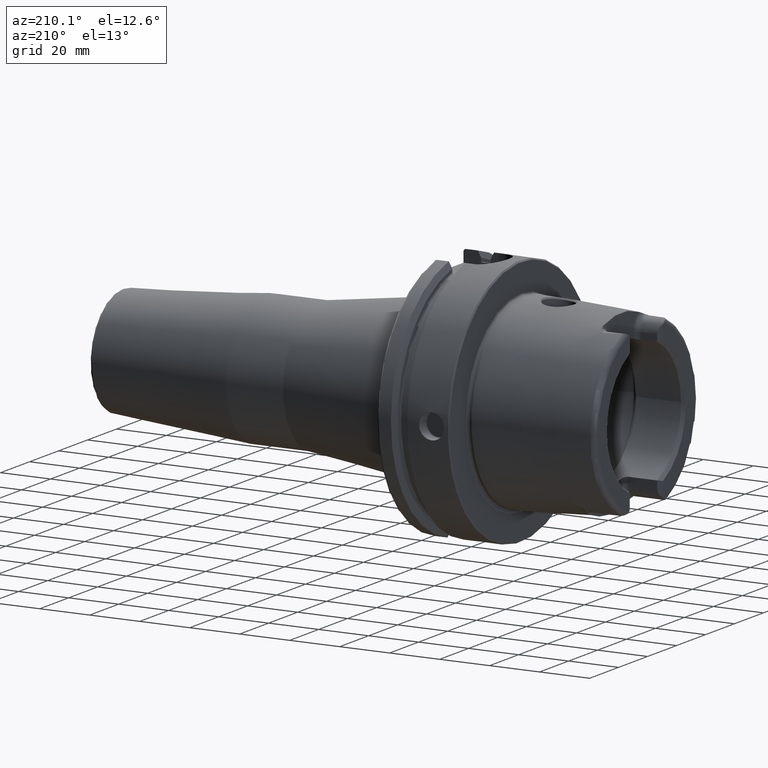
[diagram: clean part render]
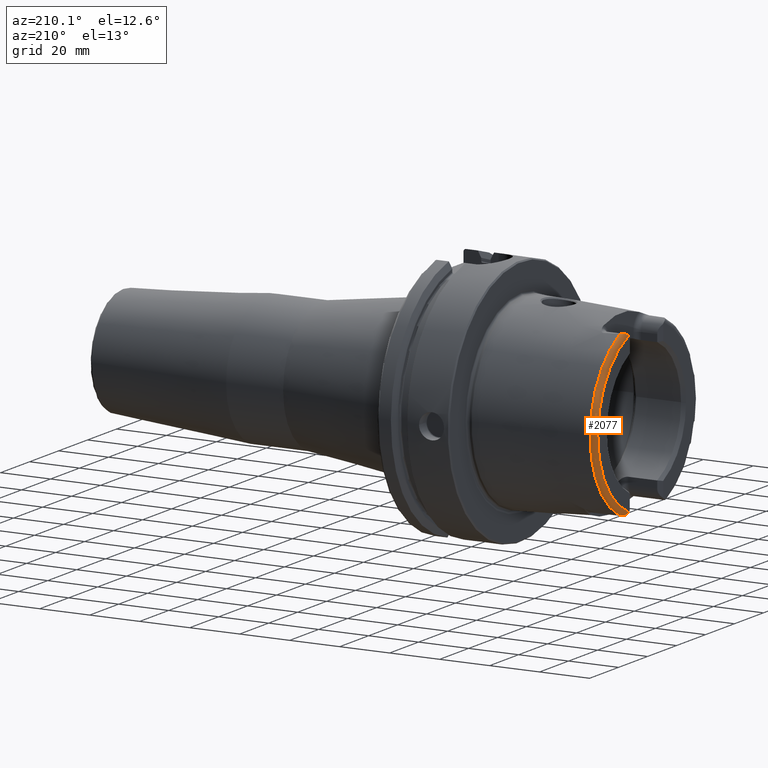
[diagram: same view with one face highlighted and labeled with its STEP entity id]
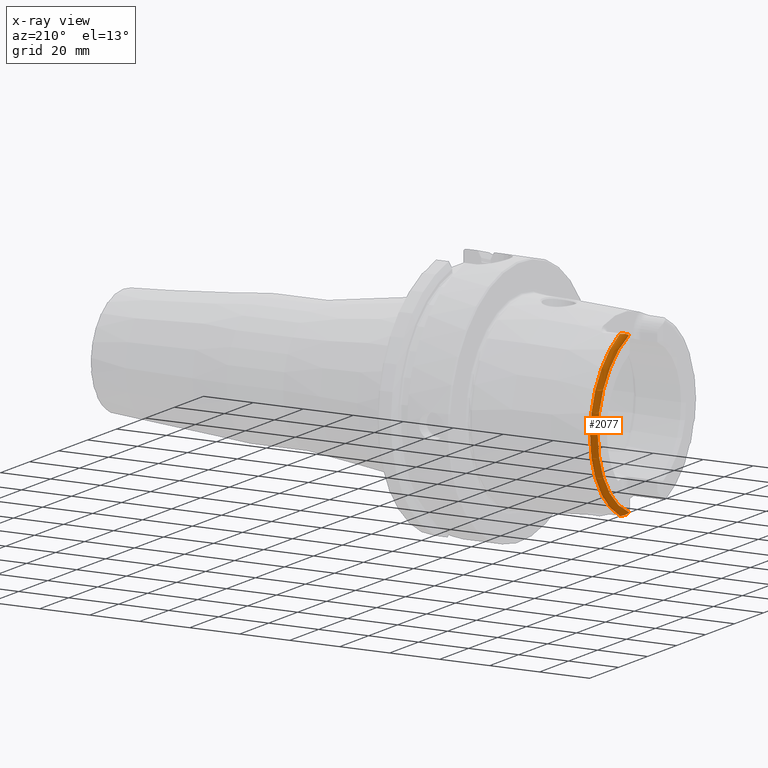
[diagram: x-ray of the same camera — body ghosted, the highlighted face saturated]
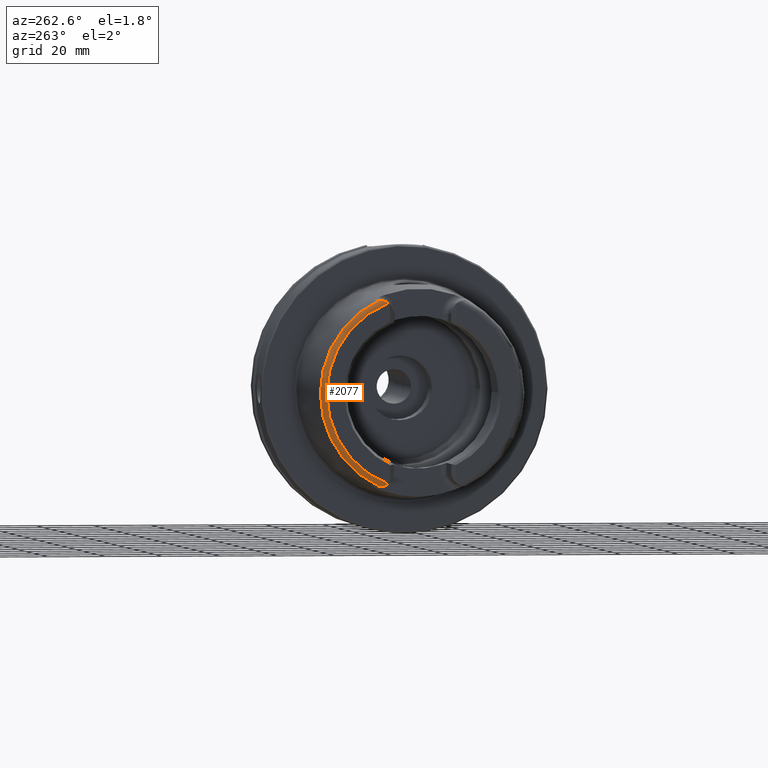
[diagram: same view with one face highlighted and labeled with its STEP entity id]
A machine part, auxiliary view. The second image highlights one B-rep face of the part: STEP entity #2077.
The next image is the same camera in x-ray: the body ghosted, the highlighted face saturated — about 0% of this face is hidden behind the body in this view.
A second angle (auxiliary view) of the same face is appended — the face is thin or edge-on in the first view.
In plain terms, the highlighted toroidal blend (fillet) surface has major radius 33.6002 mm and minor (blend) radius 2 mm.
Its self-contained STEP definition (entity closure, byte-faithful):
#31=B_SPLINE_CURVE_WITH_KNOTS('',3,(#3131,#3132,#3133,#3134,#3135,#3136,
#3137,#3138,#3139,#3140,#3141,#3142),.UNSPECIFIED.,.F.,.F.,(4,2,2,2,2,4),
(-0.744485085130335,-0.701284148098614,-0.656581713087918,-0.531183195108729,
-0.406814905045398,-0.320767863003946),.UNSPECIFIED.);
#36=B_SPLINE_CURVE_WITH_KNOTS('',3,(#3250,#3251,#3252,#3253,#3254,#3255,
#3256,#3257,#3258,#3259,#3260,#3261),.UNSPECIFIED.,.F.,.F.,(4,2,2,2,2,4),
(-0.33049294128038,-0.267730672592795,-0.15978363726818,-0.0785649842435549,
-0.0319753598823885,-6.79221864813266E-5),.UNSPECIFIED.);
#154=TOROIDAL_SURFACE('',#2328,33.6001839277785,2.);
#302=FACE_OUTER_BOUND('',#431,.T.);
#431=EDGE_LOOP('',(#1840,#1841,#1842,#1843));
#716=CIRCLE('',#2206,35.5976786130245);
#777=CIRCLE('',#2329,33.6001839277785);
#848=VERTEX_POINT('',#3128);
#849=VERTEX_POINT('',#3130);
#874=VERTEX_POINT('',#3240);
#875=VERTEX_POINT('',#3249);
#1068=EDGE_CURVE('',#849,#848,#31,.T.);
#1100=EDGE_CURVE('',#875,#874,#36,.T.);
#1119=EDGE_CURVE('',#849,#874,#716,.T.);
#1291=EDGE_CURVE('',#848,#875,#777,.T.);
#1840=ORIENTED_EDGE('',*,*,#1100,.T.);
#1841=ORIENTED_EDGE('',*,*,#1119,.F.);
#1842=ORIENTED_EDGE('',*,*,#1068,.T.);
#1843=ORIENTED_EDGE('',*,*,#1291,.T.);
#2077=ADVANCED_FACE('',(#302),#154,.T.);
#2206=AXIS2_PLACEMENT_3D('',#3518,#2587,#2588);
#2328=AXIS2_PLACEMENT_3D('',#4449,#2890,#2891);
#2329=AXIS2_PLACEMENT_3D('',#4450,#2892,#2893);
#2587=DIRECTION('center_axis',(1.,0.,0.));
#2588=DIRECTION('ref_axis',(0.,0.,-1.));
#2890=DIRECTION('center_axis',(1.,0.,0.));
#2891=DIRECTION('ref_axis',(0.,0.,-1.));
#2892=DIRECTION('center_axis',(1.,0.,0.));
#2893=DIRECTION('ref_axis',(0.,0.,-1.));
#3128=CARTESIAN_POINT('',(-50.,12.0743049948301,-31.355757348091));
#3130=CARTESIAN_POINT('',(-48.1000748840304,15.0787152148571,-32.2463497175327));
#3131=CARTESIAN_POINT('Ctrl Pts',(-48.1000748840304,15.0787152148571,-32.2463497175327));
#3132=CARTESIAN_POINT('Ctrl Pts',(-48.2105289331959,15.0644723890649,-32.2469009162952));
#3133=CARTESIAN_POINT('Ctrl Pts',(-48.3152849211513,15.0274043790922,-32.2483365520296));
#3134=CARTESIAN_POINT('Ctrl Pts',(-48.5158350355592,14.9227249886344,-32.2501807122049));
#3135=CARTESIAN_POINT('Ctrl Pts',(-48.6114759122293,14.853948633775,-32.2504380099703));
#3136=CARTESIAN_POINT('Ctrl Pts',(-48.9444340259589,14.5699075364914,-32.2439932048825));
#3137=CARTESIAN_POINT('Ctrl Pts',(-49.1873237794489,14.2618237213855,-32.2229124522755));
#3138=CARTESIAN_POINT('Ctrl Pts',(-49.6096022065355,13.5557805634606,-32.0777680620402));
#3139=CARTESIAN_POINT('Ctrl Pts',(-49.7790094341757,13.1775605707035,-31.9575317726829));
#3140=CARTESIAN_POINT('Ctrl Pts',(-49.9573633441756,12.558596693048,-31.6661869684752));
#3141=CARTESIAN_POINT('Ctrl Pts',(-50.,12.3094122367882,-31.5218463066117));
#3142=CARTESIAN_POINT('Ctrl Pts',(-50.,12.0743049948301,-31.355757348091));
#3240=CARTESIAN_POINT('',(-48.1000748840304,15.0787152148571,32.2463497175327));
#3249=CARTESIAN_POINT('',(-50.,12.0743049948301,31.355757348091));
#3250=CARTESIAN_POINT('Ctrl Pts',(-50.,12.0743049948301,31.355757348091));
#3251=CARTESIAN_POINT('Ctrl Pts',(-50.,12.2864160042027,31.5056008677719));
#3252=CARTESIAN_POINT('Ctrl Pts',(-49.965181241452,12.5182840828266,31.6438016135975));
#3253=CARTESIAN_POINT('Ctrl Pts',(-49.780095292634,13.1934814711235,31.9701190766011));
#3254=CARTESIAN_POINT('Ctrl Pts',(-49.5793805506892,13.6220310736955,32.097613465566));
#3255=CARTESIAN_POINT('Ctrl Pts',(-49.170216000735,14.274989330902,32.2194840260055));
#3256=CARTESIAN_POINT('Ctrl Pts',(-48.9762638716764,14.5215824129494,32.2396097025416));
#3257=CARTESIAN_POINT('Ctrl Pts',(-48.6666306582889,14.8133702905837,32.2505591140316));
#3258=CARTESIAN_POINT('Ctrl Pts',(-48.5389792055844,14.9127554064334,32.2504492219699));
#3259=CARTESIAN_POINT('Ctrl Pts',(-48.3058528414878,15.0307034754738,32.2482068363322));
#3260=CARTESIAN_POINT('Ctrl Pts',(-48.2055479344945,15.0651146787529,32.2468760596209));
#3261=CARTESIAN_POINT('Ctrl Pts',(-48.1000748840303,15.0787152148571,32.2463497175327));
#3518=CARTESIAN_POINT('Origin',(-48.1000748840304,0.,0.));
#4449=CARTESIAN_POINT('Origin',(-48.,0.,0.));
#4450=CARTESIAN_POINT('Origin',(-50.,0.,0.));